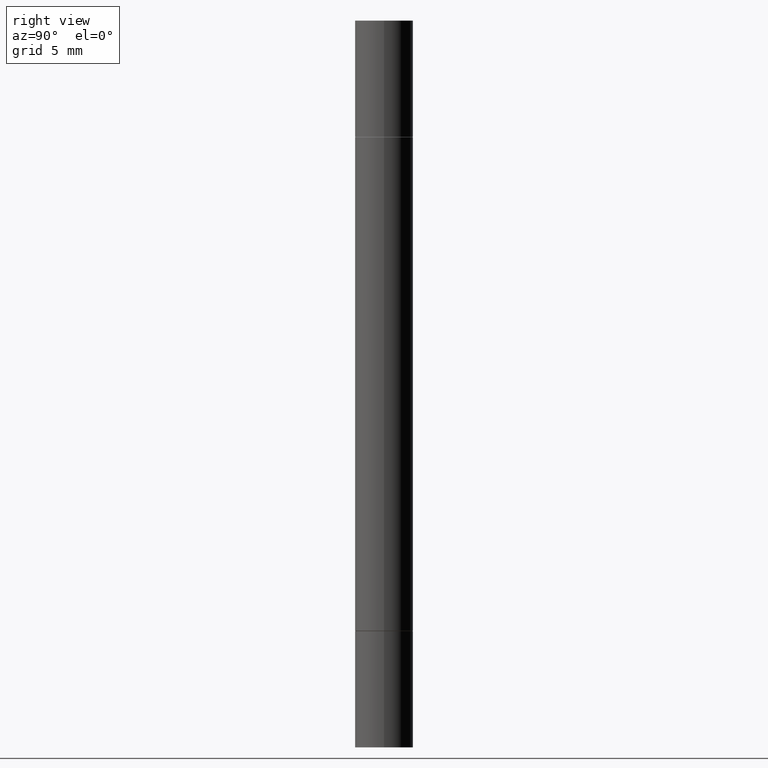
[diagram: clean part render]
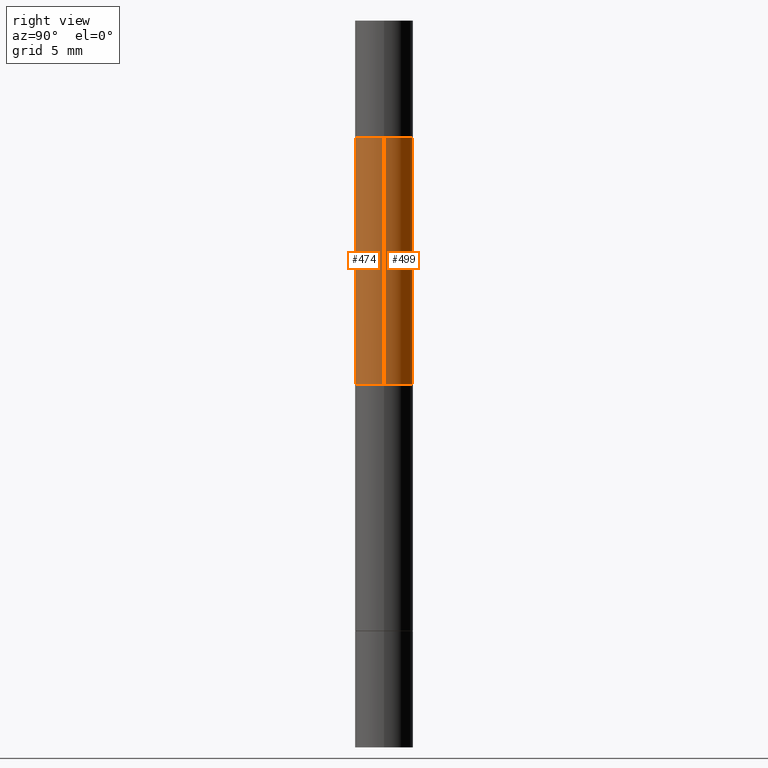
[diagram: same view with one multi-face feature highlighted, each face labeled with its STEP entity id]
A machine part, right view. The highlighted faces form ONE feature: a constant-radius fillet chain: 2 tangent blend faces with common blend radius 2.0002 mm. The faces share edges in the B-rep.
Their STEP definitions:
[1] entity #499 (Cylinder):
#74 = CARTESIAN_POINT ( 'NONE',  ( 2.406952672487720357E-29, -3.436490507756365459E-15, -0.9842499999999998472 ) ) ;
#88 = CARTESIAN_POINT ( 'NONE',  ( 0.000000000000000000, -6.874367895326177521E-15, -1.968499999999999694 ) ) ;
#93 = LINE ( 'NONE', #104, #210 ) ;
#104 = CARTESIAN_POINT ( 'NONE',  ( -0.07874999999999987566, -6.334103678001671209E-15, -1.968499999999999694 ) ) ;
#111 = EDGE_CURVE ( 'NONE', #246, #517, #93, .T. ) ;
#123 = DIRECTION ( 'NONE',  ( 0.000000000000000000, 1.000000000000000000, -3.469013325287958815E-15 ) ) ;
#163 = ORIENTED_EDGE ( 'NONE', *, *, #111, .F. ) ;
#174 = LINE ( 'NONE', #544, #679 ) ;
#197 = AXIS2_PLACEMENT_3D ( 'NONE', #331, #238, #402 ) ;
#210 = VECTOR ( 'NONE', #518, 39.37007874015748143 ) ;
#216 = ORIENTED_EDGE ( 'NONE', *, *, #646, .T. ) ;
#223 = CIRCLE ( 'NONE', #579, 0.07874999999999987566 ) ;
#225 = EDGE_CURVE ( 'NONE', #517, #556, #223, .T. ) ;
#238 = DIRECTION ( 'NONE',  ( 2.445468806185136597E-29, 3.492890411551752677E-15, 1.000000000000000000 ) ) ;
#246 = VERTEX_POINT ( 'NONE', #595 ) ;
#311 = CIRCLE ( 'NONE', #197, 0.07874999999999997280 ) ;
#322 = ORIENTED_EDGE ( 'NONE', *, *, #225, .F. ) ;
#331 = CARTESIAN_POINT ( 'NONE',  ( 4.041137202220937598E-29, -1.102366490236907793E-15, -0.3159999999999998366 ) ) ;
#359 = CARTESIAN_POINT ( 'NONE',  ( 0.07874999999999987566, -2.819336809864428295E-15, -0.9842499999999998472 ) ) ;
#402 = DIRECTION ( 'NONE',  ( 1.000000000000000000, -6.982962677686267499E-15, 0.000000000000000000 ) ) ;
#409 = CARTESIAN_POINT ( 'NONE',  ( -0.07874999999999987566, -1.729164281672128441E-15, -0.9842499999999998472 ) ) ;
#455 = DIRECTION ( 'NONE',  ( 1.000000000000000000, -6.982962677686273021E-15, 0.000000000000000000 ) ) ;
#482 = EDGE_CURVE ( 'NONE', #564, #246, #311, .T. ) ;
#499 = ADVANCED_FACE ( 'NONE', ( #652 ), #597, .T. ) ;
#501 = DIRECTION ( 'NONE',  ( -2.445468806185136597E-29, -3.492890411551752677E-15, -1.000000000000000000 ) ) ;
#517 = VERTEX_POINT ( 'NONE', #409 ) ;
#518 = DIRECTION ( 'NONE',  ( -2.445468806185136877E-29, -3.492890411551753071E-15, -1.000000000000000000 ) ) ;
#544 = CARTESIAN_POINT ( 'NONE',  ( 0.07874999999999987566, -7.424276206193971655E-15, -1.968499999999999694 ) ) ;
#556 = VERTEX_POINT ( 'NONE', #359 ) ;
#564 = VERTEX_POINT ( 'NONE', #588 ) ;
#579 = AXIS2_PLACEMENT_3D ( 'NONE', #74, #644, #123 ) ;
#581 = ORIENTED_EDGE ( 'NONE', *, *, #482, .F. ) ;
#583 = EDGE_LOOP ( 'NONE', ( #163, #581, #216, #322 ) ) ;
#588 = CARTESIAN_POINT ( 'NONE',  ( 0.07874999999999997280, -1.652274801104699758E-15, -0.3159999999999998366 ) ) ;
#595 = CARTESIAN_POINT ( 'NONE',  ( -0.07874999999999997280, -5.621022729123983254E-16, -0.3159999999999998366 ) ) ;
#597 = CYLINDRICAL_SURFACE ( 'NONE', #668, 0.07874999999999987566 ) ;
#603 = DIRECTION ( 'NONE',  ( -2.445468806185136877E-29, -3.492890411551753071E-15, -1.000000000000000000 ) ) ;
#644 = DIRECTION ( 'NONE',  ( -0.000000000000000000, -3.492185875197449130E-15, -1.000000000000000000 ) ) ;
#646 = EDGE_CURVE ( 'NONE', #564, #556, #174, .T. ) ;
#652 = FACE_OUTER_BOUND ( 'NONE', #583, .T. ) ;
#668 = AXIS2_PLACEMENT_3D ( 'NONE', #88, #501, #455 ) ;
#679 = VECTOR ( 'NONE', #603, 39.37007874015748143 ) ;
[2] entity #474 (Cylinder):
#1 = DIRECTION ( 'NONE',  ( 1.000000000000000000, -6.982962677686273021E-15, 0.000000000000000000 ) ) ;
#10 = CIRCLE ( 'NONE', #666, 0.07874999999999987566 ) ;
#14 = EDGE_CURVE ( 'NONE', #556, #517, #10, .T. ) ;
#39 = ORIENTED_EDGE ( 'NONE', *, *, #14, .F. ) ;
#93 = LINE ( 'NONE', #104, #210 ) ;
#104 = CARTESIAN_POINT ( 'NONE',  ( -0.07874999999999987566, -6.334103678001671209E-15, -1.968499999999999694 ) ) ;
#106 = CARTESIAN_POINT ( 'NONE',  ( 4.041137202220937598E-29, -1.102366490236907793E-15, -0.3159999999999998366 ) ) ;
#111 = EDGE_CURVE ( 'NONE', #246, #517, #93, .T. ) ;
#174 = LINE ( 'NONE', #544, #679 ) ;
#186 = ORIENTED_EDGE ( 'NONE', *, *, #552, .F. ) ;
#210 = VECTOR ( 'NONE', #518, 39.37007874015748143 ) ;
#237 = AXIS2_PLACEMENT_3D ( 'NONE', #106, #305, #374 ) ;
#246 = VERTEX_POINT ( 'NONE', #595 ) ;
#250 = ORIENTED_EDGE ( 'NONE', *, *, #111, .T. ) ;
#255 = CYLINDRICAL_SURFACE ( 'NONE', #500, 0.07874999999999987566 ) ;
#273 = ORIENTED_EDGE ( 'NONE', *, *, #646, .F. ) ;
#305 = DIRECTION ( 'NONE',  ( 2.445468806185136597E-29, 3.492890411551752677E-15, 1.000000000000000000 ) ) ;
#359 = CARTESIAN_POINT ( 'NONE',  ( 0.07874999999999987566, -2.819336809864428295E-15, -0.9842499999999998472 ) ) ;
#373 = CARTESIAN_POINT ( 'NONE',  ( 2.406952672487720357E-29, -3.436490507756365459E-15, -0.9842499999999998472 ) ) ;
#374 = DIRECTION ( 'NONE',  ( 1.000000000000000000, -6.982962677686267499E-15, 0.000000000000000000 ) ) ;
#390 = CIRCLE ( 'NONE', #237, 0.07874999999999997280 ) ;
#401 = FACE_OUTER_BOUND ( 'NONE', #521, .T. ) ;
#409 = CARTESIAN_POINT ( 'NONE',  ( -0.07874999999999987566, -1.729164281672128441E-15, -0.9842499999999998472 ) ) ;
#410 = CARTESIAN_POINT ( 'NONE',  ( 0.000000000000000000, -6.874367895326177521E-15, -1.968499999999999694 ) ) ;
#474 = ADVANCED_FACE ( 'NONE', ( #401 ), #255, .T. ) ;
#478 = DIRECTION ( 'NONE',  ( 0.000000000000000000, 1.000000000000000000, -3.469013325287958815E-15 ) ) ;
#500 = AXIS2_PLACEMENT_3D ( 'NONE', #410, #622, #1 ) ;
#513 = DIRECTION ( 'NONE',  ( -0.000000000000000000, -3.492185875197449130E-15, -1.000000000000000000 ) ) ;
#517 = VERTEX_POINT ( 'NONE', #409 ) ;
#518 = DIRECTION ( 'NONE',  ( -2.445468806185136877E-29, -3.492890411551753071E-15, -1.000000000000000000 ) ) ;
#521 = EDGE_LOOP ( 'NONE', ( #186, #250, #39, #273 ) ) ;
#544 = CARTESIAN_POINT ( 'NONE',  ( 0.07874999999999987566, -7.424276206193971655E-15, -1.968499999999999694 ) ) ;
#552 = EDGE_CURVE ( 'NONE', #246, #564, #390, .T. ) ;
#556 = VERTEX_POINT ( 'NONE', #359 ) ;
#564 = VERTEX_POINT ( 'NONE', #588 ) ;
#588 = CARTESIAN_POINT ( 'NONE',  ( 0.07874999999999997280, -1.652274801104699758E-15, -0.3159999999999998366 ) ) ;
#595 = CARTESIAN_POINT ( 'NONE',  ( -0.07874999999999997280, -5.621022729123983254E-16, -0.3159999999999998366 ) ) ;
#603 = DIRECTION ( 'NONE',  ( -2.445468806185136877E-29, -3.492890411551753071E-15, -1.000000000000000000 ) ) ;
#622 = DIRECTION ( 'NONE',  ( -2.445468806185136597E-29, -3.492890411551752677E-15, -1.000000000000000000 ) ) ;
#646 = EDGE_CURVE ( 'NONE', #564, #556, #174, .T. ) ;
#666 = AXIS2_PLACEMENT_3D ( 'NONE', #373, #513, #478 ) ;
#679 = VECTOR ( 'NONE', #603, 39.37007874015748143 ) ;